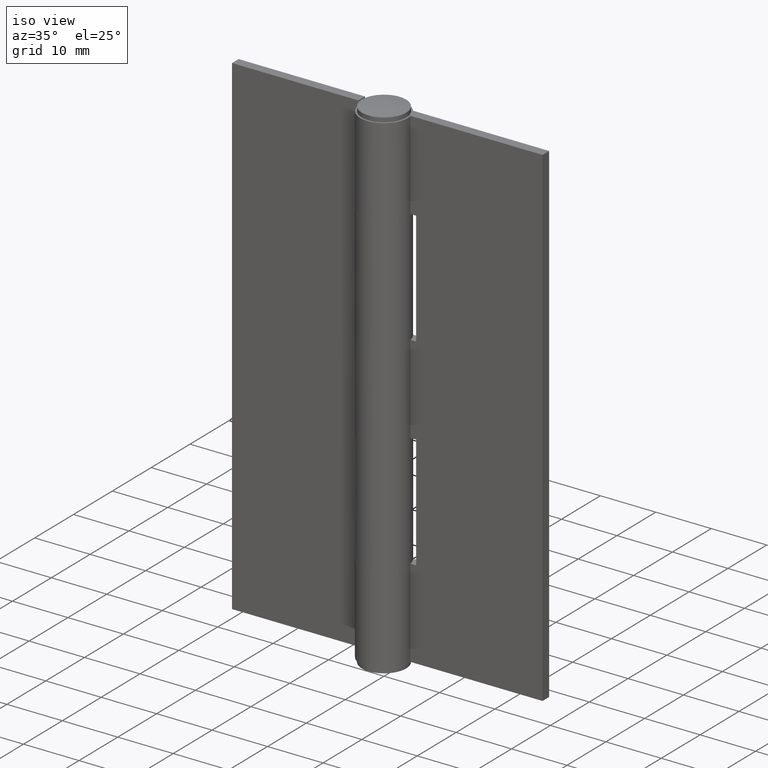
[diagram: clean part render]
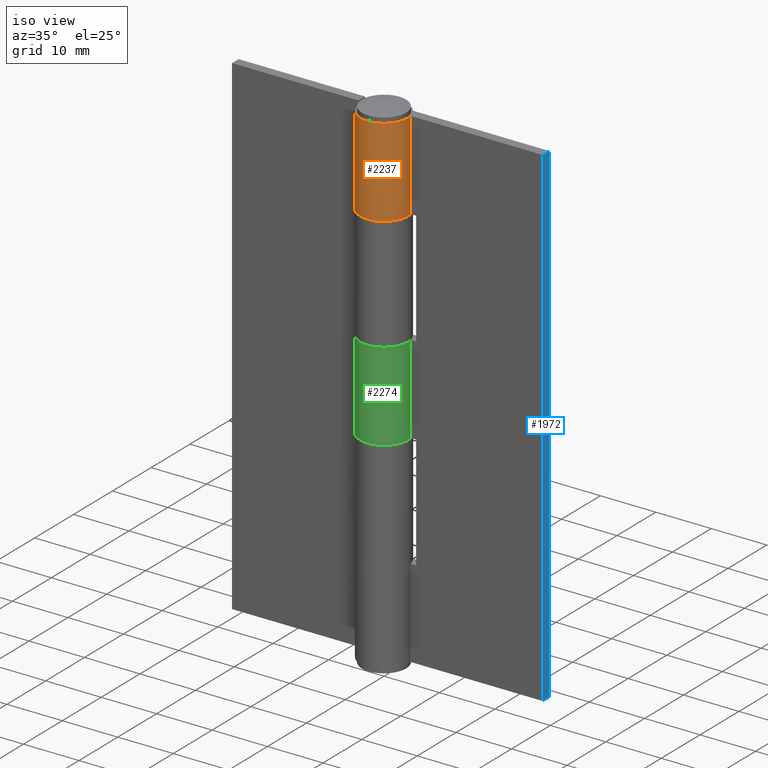
[diagram: same view with three faces highlighted in distinct colors, each labeled with its STEP entity id]
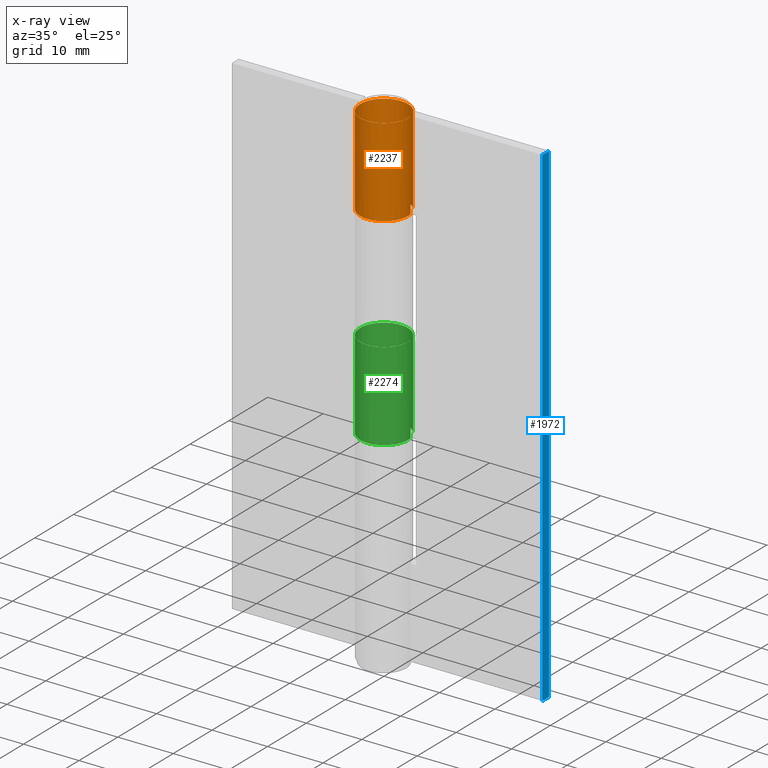
[diagram: x-ray of the same camera — body ghosted, the three highlighted faces saturated]
A machine part, iso view with three faces highlighted in distinct colors.
The next image is the same camera in x-ray (body ghosted, the three faces saturated) — at least one of them is partly hidden behind the body in this view.
Their STEP definitions:

[orange] entity #2237 — the highlighted face is a freeform B-spline surface patch.
#1254=CARTESIAN_POINT('',(3.462296188947180,2.550001000000000,73.0));
#1255=VERTEX_POINT('',#1254);
#1315=CARTESIAN_POINT('',(4.224926034855400,0.800000000000023,73.0));
#1316=VERTEX_POINT('',#1315);
#1322=CARTESIAN_POINT('',(3.462296188947180,2.550001000000000,73.0));
#1323=CARTESIAN_POINT('',(3.268590483657641,2.813121580106221,73.000000000000199));
#1324=CARTESIAN_POINT('',(2.831978981474102,3.282783072896415,72.999999999999545));
#1325=CARTESIAN_POINT('',(2.099512385852768,3.783640531567477,73.000000000000441));
#1326=CARTESIAN_POINT('',(1.210781168781404,4.165810475035069,72.999999999999304));
#1327=CARTESIAN_POINT('',(0.236276423684954,4.341206474671526,73.000000000001293));
#1328=CARTESIAN_POINT('',(-0.763683496761598,4.262513140685548,72.999999999998224));
#1329=CARTESIAN_POINT('',(-1.582640319737147,4.023847157149675,73.000000000002146));
#1330=CARTESIAN_POINT('',(-2.359416739103224,3.633312506810949,72.999999999996632));
#1331=CARTESIAN_POINT('',(-3.026420539902487,3.097508516763756,73.000000000001393));
#1332=CARTESIAN_POINT('',(-3.620520752093668,2.376019456119743,72.999999999999517));
#1333=CARTESIAN_POINT('',(-4.018453792243213,1.618613770005447,73.000000000000142));
#1334=CARTESIAN_POINT('',(-4.257149024101780,0.765517924356473,73.0));
#1335=CARTESIAN_POINT('',(-4.332269716526533,-0.117622332517282,73.0));
#1336=CARTESIAN_POINT('',(-4.198366129305930,-1.128915051878163,73.000000000000327));
#1337=CARTESIAN_POINT('',(-3.811386450134244,-2.075191905709580,72.999999999997414));
#1338=CARTESIAN_POINT('',(-3.275873716663915,-2.822223235195588,73.000000000000867));
#1339=CARTESIAN_POINT('',(-2.673589214288001,-3.402332626833866,72.999999999999659));
#1340=CARTESIAN_POINT('',(-1.996952138183679,-3.838782928650047,73.000000000000071));
#1341=CARTESIAN_POINT('',(-1.296247315915692,-4.117861399769478,73.0));
#1342=CARTESIAN_POINT('',(-0.562023078171416,-4.286112858553159,73.0));
#1343=CARTESIAN_POINT('',(0.275052869775495,-4.326854410531325,72.999999999999986));
#1344=CARTESIAN_POINT('',(1.133384403246806,-4.176202311415154,73.000000000000014));
#1345=CARTESIAN_POINT('',(1.913384273641030,-3.875941172530358,73.000000000000014));
#1346=CARTESIAN_POINT('',(2.573393589518673,-3.476641823620216,73.000000000000014));
#1347=CARTESIAN_POINT('',(3.207847057907821,-2.906406038292319,73.000000000000028));
#1348=CARTESIAN_POINT('',(3.688176084395892,-2.260178319967376,72.999999999999957));
#1349=CARTESIAN_POINT('',(4.066856708730561,-1.478446921001434,73.000000000000085));
#1350=CARTESIAN_POINT('',(4.330632702595652,-0.476696624870997,72.999999999999886));
#1351=CARTESIAN_POINT('',(4.313349792266763,0.334547890381382,73.000000000000043));
#1352=CARTESIAN_POINT('',(4.224926034855400,0.800000000000023,73.0));
#1353=B_SPLINE_CURVE_WITH_KNOTS('',3,(#1322,#1323,#1324,#1325,#1326,#1327,#1328,#1329,#1330,#1331,#1332,#1333,#1334,#1335,#1336,#1337,#1338,#1339,#1340,#1341,#1342,#1343,#1344,#1345,#1346,#1347,#1348,#1349,#1350,#1351,#1352),.UNSPECIFIED.,.F.,.U.,(4,1,1,1,1,1,1,1,1,1,1,1,1,1,1,1,1,1,1,1,1,1,1,1,1,1,1,1,4),(0.000000597838813,0.980187456919790,1.911349882575095,2.646509525428378,3.871765341087968,4.851976745197490,5.636142770027284,6.420232483617440,7.449422110698503,8.184577231030847,9.213776274937928,9.997941431509196,10.831105373833459,11.860315842274479,13.036463062343691,13.869658143351060,14.604808261075471,15.535997420737930,16.271142803244530,16.859262783311820,17.790481680555029,18.770677214361431,19.456703983807571,20.289909308265852,21.074046644792102,22.005249191162239,22.691394075122350,23.671606015744079,25.092843756867431),.UNSPECIFIED.);
#1354=EDGE_CURVE('',#1255,#1316,#1353,.T.);
#1856=CARTESIAN_POINT('',(3.462296188947180,2.550001000000000,89.0));
#1857=VERTEX_POINT('',#1856);
#1863=CARTESIAN_POINT('',(4.224926034855400,0.800000000000022,89.0));
#1864=VERTEX_POINT('',#1863);
#1865=CARTESIAN_POINT('',(4.224926034855400,0.800000000000022,89.0));
#1866=CARTESIAN_POINT('',(4.282708250215223,0.495052453400423,88.999999999999957));
#1867=CARTESIAN_POINT('',(4.337080725262137,-0.192980323830508,89.000000000000313));
#1868=CARTESIAN_POINT('',(4.181781613384909,-1.152629689311116,88.999999999999346));
#1869=CARTESIAN_POINT('',(3.852180727104296,-1.957711526860035,89.000000000000938));
#1870=CARTESIAN_POINT('',(3.408876159967753,-2.665863166711978,88.999999999999361));
#1871=CARTESIAN_POINT('',(2.879971218690510,-3.230009606142679,89.000000000001521));
#1872=CARTESIAN_POINT('',(2.215161264285304,-3.708469700697784,88.999999999999204));
#1873=CARTESIAN_POINT('',(1.612095586722185,-4.006222105050478,88.999999999998650));
#1874=CARTESIAN_POINT('',(0.892302812962506,-4.228133064515838,89.0));
#1875=CARTESIAN_POINT('',(0.012757442809100,-4.341551644879939,88.999999999999929));
#1876=CARTESIAN_POINT('',(-0.921331112411965,-4.237192038137740,88.999999999999972));
#1877=CARTESIAN_POINT('',(-1.757927041030427,-3.947226511583271,89.000000000000270));
#1878=CARTESIAN_POINT('',(-2.475656237769595,-3.551016184451151,88.999999999999844));
#1879=CARTESIAN_POINT('',(-3.052234565245037,-3.061487067169528,88.999999999999901));
#1880=CARTESIAN_POINT('',(-3.562905385783024,-2.442965295419548,89.000000000001194));
#1881=CARTESIAN_POINT('',(-3.892104811680954,-1.874547632957879,88.999999999995950));
#1882=CARTESIAN_POINT('',(-4.168650619813200,-1.139144130226746,88.999999999999488));
#1883=CARTESIAN_POINT('',(-4.301210174608777,-0.445139541182596,88.999999999999673));
#1884=CARTESIAN_POINT('',(-4.306304781169262,0.357559047131739,89.000000000000867));
#1885=CARTESIAN_POINT('',(-4.179927878578025,1.118568543378151,89.000000000000540));
#1886=CARTESIAN_POINT('',(-3.915077514807609,1.825602037733342,88.999999999999929));
#1887=CARTESIAN_POINT('',(-3.489383745927026,2.563062216480476,88.999999999991019));
#1888=CARTESIAN_POINT('',(-2.933346174288528,3.193115749204335,89.000000000004363));
#1889=CARTESIAN_POINT('',(-2.215121451390317,3.711650585477141,88.999999999998508));
#1890=CARTESIAN_POINT('',(-1.387926331971928,4.110217789057832,89.000000000000895));
#1891=CARTESIAN_POINT('',(-0.470165186084488,4.316233548799240,88.999999999999844));
#1892=CARTESIAN_POINT('',(0.481676098229342,4.298515333726044,89.000000000000028));
#1893=CARTESIAN_POINT('',(1.316596432367550,4.123602128232754,89.000000000000128));
#1894=CARTESIAN_POINT('',(2.026127718728743,3.818571199253104,88.999999999999972));
#1895=CARTESIAN_POINT('',(2.791813981083991,3.313981528849360,89.000000000000043));
#1896=CARTESIAN_POINT('',(3.220226354351325,2.878967423519865,89.000000000000057));
#1897=CARTESIAN_POINT('',(3.462296188947180,2.550001000000000,89.0));
#1898=B_SPLINE_CURVE_WITH_KNOTS('',3,(#1865,#1866,#1867,#1868,#1869,#1870,#1871,#1872,#1873,#1874,#1875,#1876,#1877,#1878,#1879,#1880,#1881,#1882,#1883,#1884,#1885,#1886,#1887,#1888,#1889,#1890,#1891,#1892,#1893,#1894,#1895,#1896,#1897),.UNSPECIFIED.,.F.,.U.,(4,1,1,1,1,1,1,1,1,1,1,1,1,1,1,1,1,1,1,1,1,1,1,1,1,1,1,1,1,1,4),(0.000000597836017,0.931130780102592,2.058396546460710,2.891560412054336,3.528693149858924,4.557884488019202,5.195022648313564,5.979165856386540,6.567248433627402,7.449422110697366,8.625649864247762,9.360808784849688,10.095953209629471,11.076151377012801,11.615283537162510,12.497466011969630,13.036463062342911,13.967661014510210,14.604808261074851,15.437979080305629,16.271142803244050,16.859262783311419,17.986480423577390,18.770677214361211,19.505749691149159,20.730975322781671,21.564154275894300,22.348322996333980,23.279511311496201,23.867622019839992,25.092843756867421),.UNSPECIFIED.);
#1899=EDGE_CURVE('',#1864,#1857,#1898,.T.);
#2177=CARTESIAN_POINT('',(4.224926034855400,0.800000000000022,89.0));
#2178=CARTESIAN_POINT('',(4.224926034855400,0.800000000000023,73.0));
#2179=QUASI_UNIFORM_CURVE('',1,(#2177,#2178),.UNSPECIFIED.,.F.,.U.);
#2180=EDGE_CURVE('',#1864,#1316,#2179,.T.);
#2201=CARTESIAN_POINT('',(3.484417029564764,2.519690053176833,89.400000000000020));
#2202=CARTESIAN_POINT('',(3.484417029564764,2.519690053176833,72.589999999999989));
#2203=CARTESIAN_POINT('',(1.195691728373685,5.684711642007353,89.400000000000020));
#2204=CARTESIAN_POINT('',(1.195691728373685,5.684711642007353,72.589999999999975));
#2205=CARTESIAN_POINT('',(-2.174123327702998,3.709877054019194,89.400000000000020));
#2206=CARTESIAN_POINT('',(-2.174123327702998,3.709877054019194,72.589999999999989));
#2207=CARTESIAN_POINT('',(-5.543938383779683,1.735042466031035,89.400000000000020));
#2208=CARTESIAN_POINT('',(-5.543938383779683,1.735042466031035,72.589999999999975));
#2209=CARTESIAN_POINT('',(-3.901178002395906,-1.808538137176870,89.400000000000020));
#2210=CARTESIAN_POINT('',(-3.901178002395906,-1.808538137176870,72.589999999999989));
#2211=CARTESIAN_POINT('',(-2.258417621012129,-5.352118740384776,89.400000000000020));
#2212=CARTESIAN_POINT('',(-2.258417621012129,-5.352118740384776,72.589999999999975));
#2213=CARTESIAN_POINT('',(1.426300644992833,-4.056558451457677,89.400000000000020));
#2214=CARTESIAN_POINT('',(1.426300644992833,-4.056558451457677,72.589999999999989));
#2215=CARTESIAN_POINT('',(5.111018910997794,-2.760998162530580,89.400000000000020));
#2216=CARTESIAN_POINT('',(5.111018910997794,-2.760998162530580,72.589999999999975));
#2217=CARTESIAN_POINT('',(4.174587719674539,1.030930342332398,89.400000000000020));
#2218=CARTESIAN_POINT('',(4.174587719674539,1.030930342332398,72.589999999999989));
#2226=(BOUNDED_SURFACE()B_SPLINE_SURFACE(1,2,((#2201,#2203,#2205,#2207,#2209,#2211,#2213,#2215,#2217),(#2202,#2204,#2206,#2208,#2210,#2212,#2214,#2216,#2218)),.UNSPECIFIED.,.F.,.F.,.U.)B_SPLINE_SURFACE_WITH_KNOTS((2,2),(3,2,2,2,3),(0.0,16.810000000000041),(0.0,6.645551442782451,13.291102885564900,19.936654328347348,26.582205771129800),.UNSPECIFIED.)GEOMETRIC_REPRESENTATION_ITEM()RATIONAL_B_SPLINE_SURFACE(((1.0,0.740218127486832,1.0,0.740218127486832,1.0,0.740218127486832,1.0,0.740218127486832,1.0),(1.0,0.740218127486832,1.0,0.740218127486832,1.0,0.740218127486832,1.0,0.740218127486832,1.0)))REPRESENTATION_ITEM('')SURFACE());
#2227=CARTESIAN_POINT('',(3.462296188947180,2.550001000000000,89.0));
#2228=CARTESIAN_POINT('',(3.462296188947180,2.550001000000000,73.0));
#2229=QUASI_UNIFORM_CURVE('',1,(#2227,#2228),.UNSPECIFIED.,.F.,.U.);
#2230=EDGE_CURVE('',#1857,#1255,#2229,.T.);
#2231=ORIENTED_EDGE('',*,*,#2230,.T.);
#2232=ORIENTED_EDGE('',*,*,#1354,.T.);
#2233=ORIENTED_EDGE('',*,*,#2180,.F.);
#2234=ORIENTED_EDGE('',*,*,#1899,.T.);
#2235=EDGE_LOOP('',(#2231,#2232,#2233,#2234));
#2236=FACE_OUTER_BOUND('',#2235,.T.);
#2237=ADVANCED_FACE('',(#2236),#2226,.T.);

[blue] entity #1972 — the highlighted face is a freeform B-spline surface patch.
#1736=CARTESIAN_POINT('',(28.0,0.850000000000023,0.0));
#1737=VERTEX_POINT('',#1736);
#1738=CARTESIAN_POINT('',(28.0,2.550001000000000,0.0));
#1739=VERTEX_POINT('',#1738);
#1740=CARTESIAN_POINT('',(28.0,0.850000000000023,0.0));
#1741=CARTESIAN_POINT('',(28.0,2.550001000000000,0.0));
#1742=QUASI_UNIFORM_CURVE('',1,(#1740,#1741),.UNSPECIFIED.,.F.,.U.);
#1743=EDGE_CURVE('',#1737,#1739,#1742,.T.);
#1847=CARTESIAN_POINT('',(28.0,0.850000000000023,89.0));
#1848=VERTEX_POINT('',#1847);
#1849=CARTESIAN_POINT('',(28.0,2.550001000000000,89.0));
#1850=VERTEX_POINT('',#1849);
#1851=CARTESIAN_POINT('',(28.0,0.850000000000023,89.0));
#1852=CARTESIAN_POINT('',(28.0,2.550001000000000,89.0));
#1853=QUASI_UNIFORM_CURVE('',1,(#1851,#1852),.UNSPECIFIED.,.F.,.U.);
#1854=EDGE_CURVE('',#1848,#1850,#1853,.T.);
#1953=CARTESIAN_POINT('',(28.0,0.765084953344956,-4.445549827500730));
#1954=CARTESIAN_POINT('',(28.0,0.765084953344956,93.445552214666776));
#1955=CARTESIAN_POINT('',(28.0,2.634916092252648,-4.445549827500730));
#1956=CARTESIAN_POINT('',(28.0,2.634916092252648,93.445552214666776));
#1957=B_SPLINE_SURFACE_WITH_KNOTS('',1,1,((#1953,#1955),(#1954,#1956)),.UNSPECIFIED.,.F.,.F.,.U.,(2,2),(2,2),(0.0,97.891102042167503),(0.0,1.869831138907692),.UNSPECIFIED.);
#1958=ORIENTED_EDGE('',*,*,#1743,.T.);
#1959=CARTESIAN_POINT('',(28.0,2.550001000000000,89.0));
#1960=CARTESIAN_POINT('',(28.0,2.550001000000000,0.0));
#1961=QUASI_UNIFORM_CURVE('',1,(#1959,#1960),.UNSPECIFIED.,.F.,.U.);
#1962=EDGE_CURVE('',#1850,#1739,#1961,.T.);
#1963=ORIENTED_EDGE('',*,*,#1962,.F.);
#1964=ORIENTED_EDGE('',*,*,#1854,.F.);
#1965=CARTESIAN_POINT('',(28.0,0.850000000000023,89.0));
#1966=CARTESIAN_POINT('',(28.0,0.850000000000023,0.0));
#1967=QUASI_UNIFORM_CURVE('',1,(#1965,#1966),.UNSPECIFIED.,.F.,.U.);
#1968=EDGE_CURVE('',#1848,#1737,#1967,.T.);
#1969=ORIENTED_EDGE('',*,*,#1968,.T.);
#1970=EDGE_LOOP('',(#1958,#1963,#1964,#1969));
#1971=FACE_OUTER_BOUND('',#1970,.T.);
#1972=ADVANCED_FACE('',(#1971),#1957,.F.);

[green] entity #2274 — the highlighted face is a freeform B-spline surface patch.
#1392=CARTESIAN_POINT('',(3.462296188947180,2.550001000000000,52.500000000000000));
#1393=VERTEX_POINT('',#1392);
#1399=CARTESIAN_POINT('',(4.224926034855400,0.800000000000023,52.500000000000000));
#1400=VERTEX_POINT('',#1399);
#1401=CARTESIAN_POINT('',(4.224926034855400,0.800000000000023,52.500000000000000));
#1402=CARTESIAN_POINT('',(4.301063941927022,0.398734831639766,52.499999999999872));
#1403=CARTESIAN_POINT('',(4.331759940489988,-0.293680986730177,52.500000000000213));
#1404=CARTESIAN_POINT('',(4.153889255661075,-1.195451190278450,52.499999999999837));
#1405=CARTESIAN_POINT('',(3.862510243743555,-1.943769713050446,52.500000000000078));
#1406=CARTESIAN_POINT('',(3.465275789839426,-2.586327596863939,52.500000000000057));
#1407=CARTESIAN_POINT('',(2.904114364559325,-3.205781508493125,52.499999999999751));
#1408=CARTESIAN_POINT('',(2.235297699557052,-3.710771673371655,52.500000000000597));
#1409=CARTESIAN_POINT('',(1.520690099162704,-4.043488104496159,52.499999999998948));
#1410=CARTESIAN_POINT('',(0.763598005995523,-4.253498282583045,52.499999999999787));
#1411=CARTESIAN_POINT('',(-0.004883797811286,-4.330311412284674,52.500000000000149));
#1412=CARTESIAN_POINT('',(-0.853637431706708,-4.240364692254138,52.499999999999950));
#1413=CARTESIAN_POINT('',(-1.575944544211672,-4.021951371307457,52.499999999999993));
#1414=CARTESIAN_POINT('',(-2.295609766936219,-3.666428216552686,52.500000000000107));
#1415=CARTESIAN_POINT('',(-2.977913345455573,-3.151097877260976,52.499999999999602));
#1416=CARTESIAN_POINT('',(-3.550603762348286,-2.473273843070726,52.500000000000831));
#1417=CARTESIAN_POINT('',(-3.957237377827371,-1.742612452012876,52.499999999997982));
#1418=CARTESIAN_POINT('',(-4.198641102678315,-1.027264655382627,52.500000000000270));
#1419=CARTESIAN_POINT('',(-4.327522543888026,-0.168287104821361,52.500000000000441));
#1420=CARTESIAN_POINT('',(-4.278376556663287,0.702977185880323,52.499999999997733));
#1421=CARTESIAN_POINT('',(-4.016565390624352,1.618255841028290,52.500000000006843));
#1422=CARTESIAN_POINT('',(-3.603880026555586,2.403807691460535,52.499999999984581));
#1423=CARTESIAN_POINT('',(-2.994199216004814,3.135653786033744,52.500000000020748));
#1424=CARTESIAN_POINT('',(-2.158480535242302,3.776340838445454,52.499999999988447));
#1425=CARTESIAN_POINT('',(-1.228131447650918,4.160737751310379,52.500000000004562));
#1426=CARTESIAN_POINT('',(-0.289855967617548,4.315757766081795,52.499999999999140));
#1427=CARTESIAN_POINT('',(0.498197627438221,4.296700761971733,52.500000000000000));
#1428=CARTESIAN_POINT('',(1.379791796419452,4.106774636349409,52.500000000000021));
#1429=CARTESIAN_POINT('',(2.235575914514667,3.721465886448467,52.500000000000007));
#1430=CARTESIAN_POINT('',(2.961554350597408,3.155061104779315,52.499999999999957));
#1431=CARTESIAN_POINT('',(3.326675438614551,2.734151698901449,52.500000000000057));
#1432=CARTESIAN_POINT('',(3.462296188947180,2.550001000000000,52.500000000000000));
#1433=B_SPLINE_CURVE_WITH_KNOTS('',3,(#1401,#1402,#1403,#1404,#1405,#1406,#1407,#1408,#1409,#1410,#1411,#1412,#1413,#1414,#1415,#1416,#1417,#1418,#1419,#1420,#1421,#1422,#1423,#1424,#1425,#1426,#1427,#1428,#1429,#1430,#1431,#1432),.UNSPECIFIED.,.F.,.U.,(4,1,1,1,1,1,1,1,1,1,1,1,1,1,1,1,1,1,1,1,1,1,1,1,1,1,1,1,1,4),(0.000000597834976,1.225231380171937,2.058396546459473,2.744525177008121,3.626711459100676,4.312837424279440,5.244061453158043,6.126186937880203,6.665254601546693,7.596454543268028,8.429628140121004,9.213776274936372,9.850905806089800,10.831105373832241,11.762320595703930,12.497466011969500,13.330528788370710,14.016699067771720,15.094913985151001,15.928077708790140,16.859262783311419,17.741439072109099,18.770677214361211,19.995822681449969,20.730975322781671,21.613169511922329,22.348322996333980,23.426554709140621,24.406727579945500,25.092843756867421),.UNSPECIFIED.);
#1434=EDGE_CURVE('',#1400,#1393,#1433,.T.);
#1494=CARTESIAN_POINT('',(3.462296188947180,2.550001000000000,36.500000000000000));
#1495=VERTEX_POINT('',#1494);
#1555=CARTESIAN_POINT('',(4.224926034855400,0.800000000000023,36.500000000000000));
#1556=VERTEX_POINT('',#1555);
#1562=CARTESIAN_POINT('',(3.462296188947180,2.550001000000000,36.500000000000000));
#1563=CARTESIAN_POINT('',(3.268590483657640,2.813121580106222,36.500000000000099));
#1564=CARTESIAN_POINT('',(2.831978981474105,3.282783072896417,36.499999999999773));
#1565=CARTESIAN_POINT('',(2.099518129751627,3.783664245240805,36.500000000000163));
#1566=CARTESIAN_POINT('',(1.406579214196853,4.081484321629104,36.500000000000071));
#1567=CARTESIAN_POINT('',(0.629590514239274,4.281738576469381,36.499999999999552));
#1568=CARTESIAN_POINT('',(-0.225130262984070,4.331705296264905,36.500000000000753));
#1569=CARTESIAN_POINT('',(-1.131610759256537,4.176434763461837,36.499999999999503));
#1570=CARTESIAN_POINT('',(-1.867595805667566,3.896576033270277,36.499999999999758));
#1571=CARTESIAN_POINT('',(-2.586951347155298,3.471006793684161,36.499999999999879));
#1572=CARTESIAN_POINT('',(-3.197936760467189,2.920117101642427,36.500000000000050));
#1573=CARTESIAN_POINT('',(-3.653071220579759,2.298231908127123,36.500000000000007));
#1574=CARTESIAN_POINT('',(-3.972810033064854,1.689628017502563,36.499999999999993));
#1575=CARTESIAN_POINT('',(-4.233273705920276,0.929162874495240,36.499999999999993));
#1576=CARTESIAN_POINT('',(-4.331944011892831,0.062107303193821,36.500000000000107));
#1577=CARTESIAN_POINT('',(-4.255193928901338,-0.721175121430131,36.499999999999787));
#1578=CARTESIAN_POINT('',(-4.091951476294796,-1.372115568185418,36.500000000000441));
#1579=CARTESIAN_POINT('',(-3.777436850180511,-2.129206961831510,36.499999999997719));
#1580=CARTESIAN_POINT('',(-3.253383619118052,-2.869355640783359,36.500000000001322));
#1581=CARTESIAN_POINT('',(-2.529936439285100,-3.512357227283796,36.499999999999673));
#1582=CARTESIAN_POINT('',(-1.706345207751327,-3.992026878968673,36.500000000000057));
#1583=CARTESIAN_POINT('',(-0.742588531187251,-4.277408635698581,36.499999999999972));
#1584=CARTESIAN_POINT('',(0.275056871099593,-4.326840099732060,36.500000000000007));
#1585=CARTESIAN_POINT('',(1.133384343543063,-4.176203960101684,36.500000000000007));
#1586=CARTESIAN_POINT('',(1.913383264201095,-3.875940199080056,36.500000000000007));
#1587=CARTESIAN_POINT('',(2.573399740880127,-3.476646230750295,36.499999999999993));
#1588=CARTESIAN_POINT('',(3.110213431046854,-2.994114428434187,36.500000000000043));
#1589=CARTESIAN_POINT('',(3.545045925724302,-2.461609962934976,36.499999999999950));
#1590=CARTESIAN_POINT('',(3.897098285450868,-1.869759819969489,36.500000000000021));
#1591=CARTESIAN_POINT('',(4.209214904637407,-1.040693822985478,36.500000000000007));
#1592=CARTESIAN_POINT('',(4.335841278207355,-0.126734137952383,36.499999999999957));
#1593=CARTESIAN_POINT('',(4.276606514808822,0.527139254273183,36.500000000000043));
#1594=CARTESIAN_POINT('',(4.224926034855400,0.800000000000023,36.500000000000000));
#1595=B_SPLINE_CURVE_WITH_KNOTS('',3,(#1562,#1563,#1564,#1565,#1566,#1567,#1568,#1569,#1570,#1571,#1572,#1573,#1574,#1575,#1576,#1577,#1578,#1579,#1580,#1581,#1582,#1583,#1584,#1585,#1586,#1587,#1588,#1589,#1590,#1591,#1592,#1593,#1594),.UNSPECIFIED.,.F.,.U.,(4,1,1,1,1,1,1,1,1,1,1,1,1,1,1,1,1,1,1,1,1,1,1,1,1,1,1,1,1,1,4),(0.000000597838813,0.980187456919790,1.911349882575095,2.646509525428378,3.234628129427463,4.312837424282286,5.195022648315032,5.979165856387898,6.665254601548948,7.694470206522272,8.429628140122734,8.968722772003627,9.752888914774871,10.831105373833459,11.566250139384691,12.105353539402980,12.840468895423900,14.016699067772480,14.800836403346290,15.732038949728620,16.859262783311820,17.790481680555029,18.770677214361431,19.456703983807571,20.289909308265852,21.074046644792102,21.613169511922401,22.348322996334069,23.132473024091510,24.259690663719280,25.092843756867431),.UNSPECIFIED.);
#1596=EDGE_CURVE('',#1495,#1556,#1595,.T.);
#2191=CARTESIAN_POINT('',(4.224926034855400,0.800000000000023,52.500000000000000));
#2192=CARTESIAN_POINT('',(4.224926034855400,0.800000000000023,36.500000000000000));
#2193=QUASI_UNIFORM_CURVE('',1,(#2191,#2192),.UNSPECIFIED.,.F.,.U.);
#2194=EDGE_CURVE('',#1400,#1556,#2193,.T.);
#2238=CARTESIAN_POINT('',(3.484417029564764,2.519690053176833,52.900000000000013));
#2239=CARTESIAN_POINT('',(3.484417029564764,2.519690053176833,36.089999999999989));
#2240=CARTESIAN_POINT('',(1.195691728373685,5.684711642007353,52.899999999999999));
#2241=CARTESIAN_POINT('',(1.195691728373685,5.684711642007353,36.089999999999982));
#2242=CARTESIAN_POINT('',(-2.174123327702998,3.709877054019194,52.900000000000013));
#2243=CARTESIAN_POINT('',(-2.174123327702998,3.709877054019194,36.089999999999989));
#2244=CARTESIAN_POINT('',(-5.543938383779683,1.735042466031035,52.899999999999999));
#2245=CARTESIAN_POINT('',(-5.543938383779683,1.735042466031035,36.089999999999982));
#2246=CARTESIAN_POINT('',(-3.901178002395906,-1.808538137176870,52.900000000000013));
#2247=CARTESIAN_POINT('',(-3.901178002395906,-1.808538137176870,36.089999999999989));
#2248=CARTESIAN_POINT('',(-2.258417621012129,-5.352118740384776,52.899999999999999));
#2249=CARTESIAN_POINT('',(-2.258417621012129,-5.352118740384776,36.089999999999982));
#2250=CARTESIAN_POINT('',(1.426300644992833,-4.056558451457677,52.900000000000013));
#2251=CARTESIAN_POINT('',(1.426300644992833,-4.056558451457677,36.089999999999989));
#2252=CARTESIAN_POINT('',(5.111018910997794,-2.760998162530580,52.899999999999999));
#2253=CARTESIAN_POINT('',(5.111018910997794,-2.760998162530580,36.089999999999982));
#2254=CARTESIAN_POINT('',(4.174587719674539,1.030930342332398,52.900000000000013));
#2255=CARTESIAN_POINT('',(4.174587719674539,1.030930342332398,36.089999999999989));
#2263=(BOUNDED_SURFACE()B_SPLINE_SURFACE(1,2,((#2238,#2240,#2242,#2244,#2246,#2248,#2250,#2252,#2254),(#2239,#2241,#2243,#2245,#2247,#2249,#2251,#2253,#2255)),.UNSPECIFIED.,.F.,.F.,.U.)B_SPLINE_SURFACE_WITH_KNOTS((2,2),(3,2,2,2,3),(0.0,16.810000000000020),(0.0,6.645551442782451,13.291102885564900,19.936654328347348,26.582205771129800),.UNSPECIFIED.)GEOMETRIC_REPRESENTATION_ITEM()RATIONAL_B_SPLINE_SURFACE(((1.0,0.740218127486832,1.0,0.740218127486832,1.0,0.740218127486832,1.0,0.740218127486832,1.0),(1.0,0.740218127486832,1.0,0.740218127486832,1.0,0.740218127486832,1.0,0.740218127486832,1.0)))REPRESENTATION_ITEM('')SURFACE());
#2264=ORIENTED_EDGE('',*,*,#2194,.F.);
#2265=ORIENTED_EDGE('',*,*,#1434,.T.);
#2266=CARTESIAN_POINT('',(3.462296188947180,2.550001000000000,52.500000000000000));
#2267=CARTESIAN_POINT('',(3.462296188947180,2.550001000000000,36.500000000000000));
#2268=QUASI_UNIFORM_CURVE('',1,(#2266,#2267),.UNSPECIFIED.,.F.,.U.);
#2269=EDGE_CURVE('',#1393,#1495,#2268,.T.);
#2270=ORIENTED_EDGE('',*,*,#2269,.T.);
#2271=ORIENTED_EDGE('',*,*,#1596,.T.);
#2272=EDGE_LOOP('',(#2264,#2265,#2270,#2271));
#2273=FACE_OUTER_BOUND('',#2272,.T.);
#2274=ADVANCED_FACE('',(#2273),#2263,.T.);